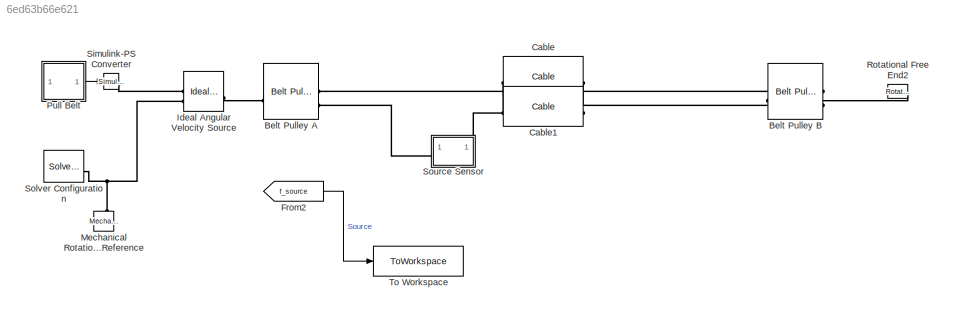
MODEL slx_6ed63b66e621
KIND model
CONFIG AbsTol = auto
CONFIG EnableMultiTasking = off
CONFIG FixedStep = auto
CONFIG MaxStep = auto
CONFIG MinStep = auto
CONFIG RelTol = 1e-3
CONFIG SampleTimeConstraint = Unconstrained
CONFIG SolverName = VariableStepAuto
CONFIG StartTime = 0.0
CONFIG StopTime = t_time
BLOCK [Reference] Belt Pulley A  REF=sdl_lib/Couplings & Drives/Belt Pulley
  SourceBlock = sdl_lib/Couplings & Drives/Belt Pulley
  SourceType = Belt Pulley
BLOCK [Reference] Belt Pulley B  REF=sdl_lib/Couplings & Drives/Belt Pulley
  SourceBlock = sdl_lib/Couplings & Drives/Belt Pulley
  SourceType = Belt Pulley
BLOCK [Reference] Cable  REF=sdl_lib/Couplings & Drives/Cable
  SourceBlock = sdl_lib/Couplings & Drives/Cable
  SourceType = Cable
BLOCK [Reference] Cable1  REF=sdl_lib/Couplings & Drives/Cable
  NameLocation = top
  SourceBlock = sdl_lib/Couplings & Drives/Cable
  SourceType = Cable
BLOCK [From] From2
  GotoTag = f_source
  TagVisibility = global
BLOCK [Reference] Ideal Angular Velocity Source  REF=fl_lib/Mechanical/Mechanical Sources/Ideal Angular
Velocity Source
  SourceBlock = fl_lib/Mechanical/Mechanical Sources/Ideal Angular\nVelocity Source
  SourceType = Ideal Angular\nVelocity Source
BLOCK [Reference] Mechanical Rotational Reference  REF=fl_lib/Mechanical/Rotational Elements/Mechanical
Rotational Reference
  NameLocation = right
  SourceBlock = fl_lib/Mechanical/Rotational Elements/Mechanical\nRotational Reference
  SourceType = Mechanical\nRotational Reference
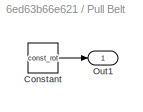
BLOCK [SubSystem] Pull Belt
BLOCK [Constant] Pull Belt/Constant
  Value = const_rot
BLOCK [Outport] Pull Belt/Out1
BLOCK [Reference] Rotational Free End2  REF=fl_lib/Mechanical/Rotational Elements/Rotational Free End
  SourceBlock = fl_lib/Mechanical/Rotational Elements/Rotational Free End
  SourceType = Rotational Free End
BLOCK [Reference] Simulink-PS Converter  REF=nesl_utility/Simulink-PS
Converter
  SourceBlock = nesl_utility/Simulink-PS\nConverter
  SourceType = Simulink-PS\nConverter
BLOCK [Reference] Solver Configuration  REF=nesl_utility/Solver
Configuration
  NameLocation = top
  SourceBlock = nesl_utility/Solver\nConfiguration
  SourceType = Solver\nConfiguration
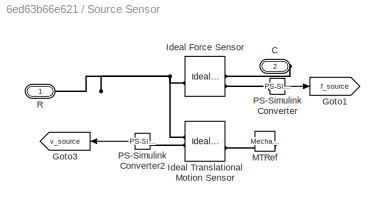
BLOCK [SubSystem] Source Sensor
  NameLocation = top
BLOCK [PMIOPort] Source Sensor/C
  NameLocation = top
  Port = 2
  Side = Right
BLOCK [Goto] Source Sensor/Goto1
  GotoTag = f_source
  TagVisibility = global
BLOCK [Goto] Source Sensor/Goto3
  GotoTag = v_source
  NameLocation = top
  TagVisibility = global
BLOCK [Reference] Source Sensor/Ideal Force Sensor  REF=fl_lib/Mechanical/Mechanical Sensors/Ideal Force Sensor
  SourceBlock = fl_lib/Mechanical/Mechanical Sensors/Ideal Force Sensor
  SourceType = Ideal Force Sensor
BLOCK [Reference] Source Sensor/Ideal Translational Motion Sensor  REF=fl_lib/Mechanical/Mechanical Sensors/Ideal Translational
Motion Sensor
  NameLocation = top
  SourceBlock = fl_lib/Mechanical/Mechanical Sensors/Ideal Translational\nMotion Sensor
  SourceType = Ideal Translational\nMotion Sensor
BLOCK [Reference] Source Sensor/MTRef  REF=fl_lib/Mechanical/Translational
Elements/Mechanical
Translational
Reference
  NameLocation = top
  SourceBlock = fl_lib/Mechanical/Translational\nElements/Mechanical\nTranslational\nReference
  SourceType = Mechanical\nTranslational\nReference
BLOCK [Reference] Source Sensor/PS-Simulink Converter  REF=nesl_utility/PS-Simulink
Converter
  SourceBlock = nesl_utility/PS-Simulink\nConverter
  SourceType = PS-Simulink\nConverter
BLOCK [Reference] Source Sensor/PS-Simulink Converter2  REF=nesl_utility/PS-Simulink
Converter
  NameLocation = top
  SourceBlock = nesl_utility/PS-Simulink\nConverter
  SourceType = PS-Simulink\nConverter
BLOCK [PMIOPort] Source Sensor/R
  NameLocation = top
  Side = Left
BLOCK [ToWorkspace] To Workspace
  FixptAsFi = on
  MaxDataPoints = inf
  SampleTime = -1
  Save2DSignal = 2-D array (concatenate along first dimension)
  VariableName = Force
LINE From2:1 -> To Workspace:1
LINE Pull Belt/Constant:1 -> Pull Belt/Out1:1
LINE Pull Belt:1 -> Simulink-PS Converter:1
LINE Source Sensor/PS-Simulink Converter2:1 -> Source Sensor/Goto3:1
LINE Source Sensor/PS-Simulink Converter:1 -> Source Sensor/Goto1:1
PLINE Belt Pulley A:LConn1 -- Ideal Angular Velocity Source:LConn1
PLINE Belt Pulley A:RConn1 -- Cable:LConn1
PLINE Belt Pulley A:RConn2 -- Source Sensor:RConn1
PLINE Belt Pulley B:LConn1 -- Rotational Free End2:LConn1
PLINE Belt Pulley B:RConn1 -- Cable1:LConn1
PLINE Belt Pulley B:RConn2 -- Cable:RConn1
PLINE Cable1:RConn1 -- Source Sensor:LConn1
PLINE Ideal Angular Velocity Source:RConn1 -- Simulink-PS Converter:RConn1
PNET net1: Ideal Angular Velocity Source:RConn2 -- Mechanical Rotational Reference:LConn1 -- Solver Configuration:RConn1
PLINE Source Sensor/C:RConn1 -- Source Sensor/Ideal Force Sensor:RConn1
PNET net2: Source Sensor/Ideal Force Sensor:LConn1 -- Source Sensor/Ideal Translational Motion Sensor:RConn1 -- Source Sensor/R:RConn1
PLINE Source Sensor/Ideal Force Sensor:RConn2 -- Source Sensor/PS-Simulink Converter:LConn1
PLINE Source Sensor/Ideal Translational Motion Sensor:LConn1 -- Source Sensor/MTRef:LConn1
PLINE Source Sensor/Ideal Translational Motion Sensor:RConn2 -- Source Sensor/PS-Simulink Converter2:LConn1
note: PNET lines group multi-terminal physical nets as a canonical sorted terminal list (undirected conserving connections); 2-terminal nets keep the pairwise PLINE form
